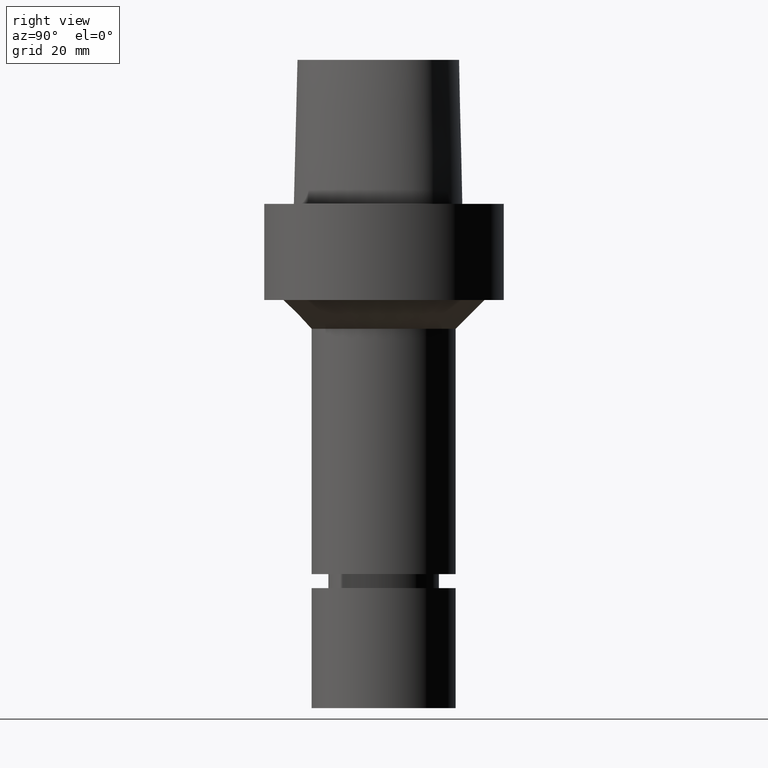
[diagram: clean part render]
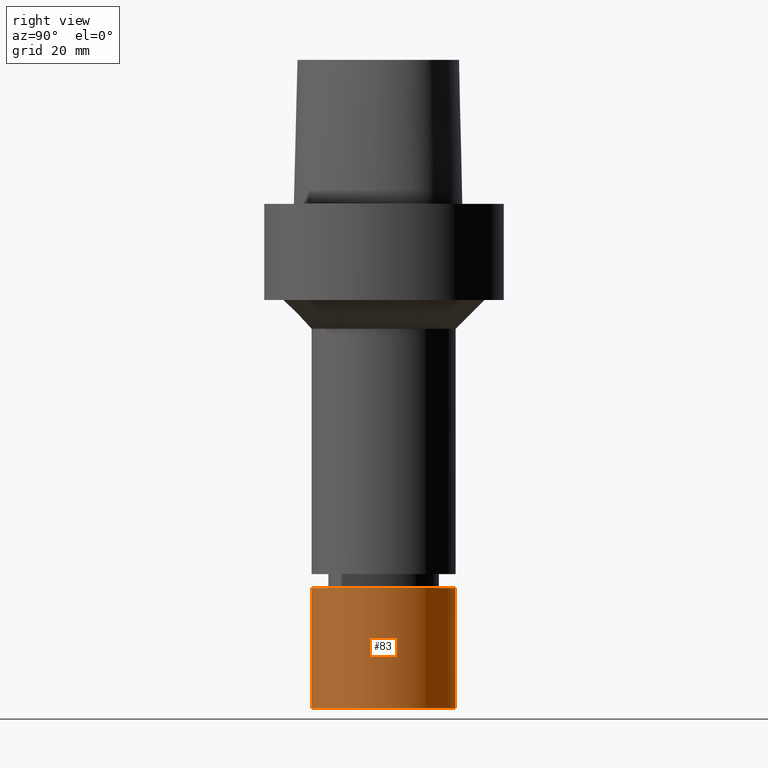
[diagram: same view with one face highlighted and labeled with its STEP entity id]
A machine part, right view. The second image highlights one B-rep face of the part: STEP entity #83.
In plain terms, the highlighted cylindrical surface (bore or boss wall) has radius 15 mm, axis along (0, 0, -1).
Its self-contained STEP definition (entity closure, byte-faithful):
#83=ADVANCED_FACE('Unnamed[1]',(#195,#196),#197,.T.);
#125=EDGE_CURVE('Unnamed[1]',#257,#257,#258,.T.);
#133=EDGE_CURVE('Unnamed[1]',#268,#268,#269,.T.);
#195=FACE_BOUND('',#433,.T.);
#196=FACE_BOUND('',#434,.T.);
#197=CYLINDRICAL_SURFACE('',#435,15.0);
#257=VERTEX_POINT('',#560);
#258=CIRCLE('',#561,15.0);
#268=VERTEX_POINT('',#957);
#269=CIRCLE('',#958,15.0000000000001);
#433=EDGE_LOOP('',(#1017));
#434=EDGE_LOOP('',(#1018));
#435=AXIS2_PLACEMENT_3D('',#1019,#1020,#1021);
#560=CARTESIAN_POINT('',(6.4293956955236E-015,15.0,-105.0));
#561=AXIS2_PLACEMENT_3D('',#1079,#1080,#1081);
#957=CARTESIAN_POINT('',(4.89858719658941E-015,15.0000000000001,-80.0));
#958=AXIS2_PLACEMENT_3D('',#1092,#1093,#1094);
#1017=ORIENTED_EDGE('',*,*,#125,.F.);
#1018=ORIENTED_EDGE('',*,*,#133,.T.);
#1019=CARTESIAN_POINT('',(5.66399144605651E-015,1.1327982892113E-014,-92.5));
#1020=DIRECTION('',(6.12323399573677E-017,1.22464679914735E-016,-1.0));
#1021=DIRECTION('',(-1.23259516440783E-032,1.0,1.22464679914735E-016));
#1079=CARTESIAN_POINT('',(6.4293956955236E-015,1.28587913910472E-014,-105.0));
#1080=DIRECTION('',(6.12323399573677E-017,1.22464679914735E-016,-1.0));
#1081=DIRECTION('',(-1.23259516440783E-032,1.0,1.22464679914735E-016));
#1092=CARTESIAN_POINT('',(4.89858719658941E-015,9.79717439317882E-015,-80.0));
#1093=DIRECTION('',(6.12323399573676E-017,1.22464679914735E-016,-1.0));
#1094=DIRECTION('',(-1.23259516440783E-032,1.0,1.22464679914735E-016));